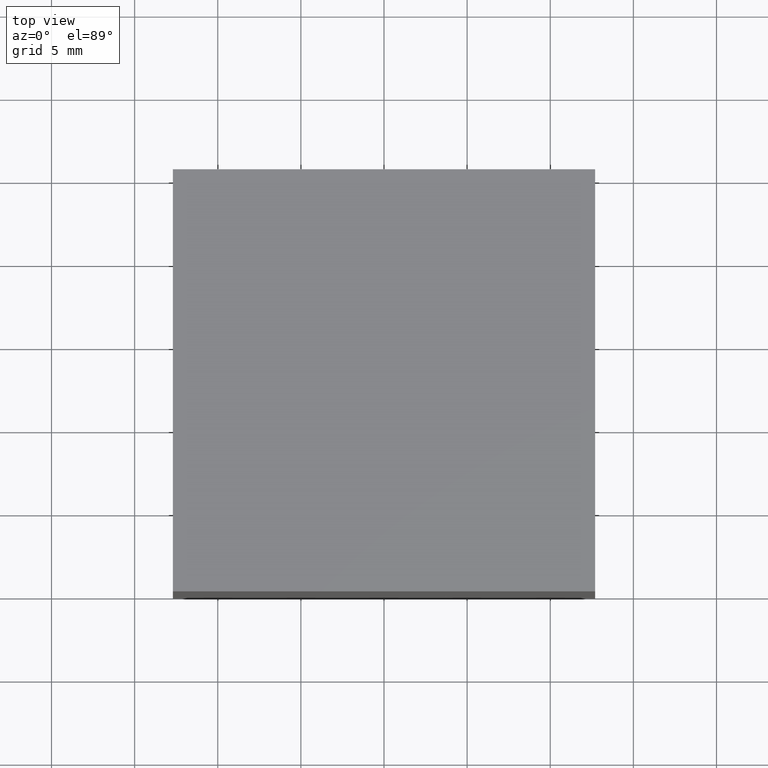
[diagram: clean part render]
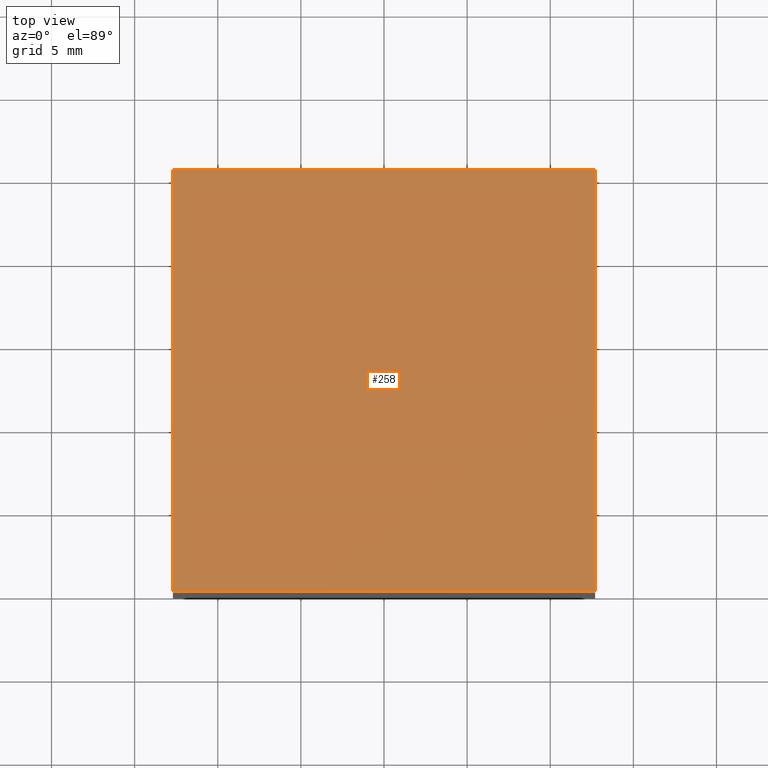
[diagram: same view with one face highlighted and labeled with its STEP entity id]
A machine part, top view. The second image highlights one B-rep face of the part: STEP entity #258.
In plain terms, the highlighted planar face has unit normal (0, 0, 1).
Its self-contained STEP definition (entity closure, byte-faithful):
#6 = CARTESIAN_POINT ( 'NONE',  ( -12.69999999999999929, 0.000000000000000000, 12.69999999999999929 ) ) ;
#8 = VECTOR ( 'NONE', #189, 1000.000000000000000 ) ;
#9 = EDGE_LOOP ( 'NONE', ( #39, #288, #109, #178 ) ) ;
#29 = CARTESIAN_POINT ( 'NONE',  ( -12.69999999999999929, 25.39999999999999858, 12.69999999999999929 ) ) ;
#33 = CARTESIAN_POINT ( 'NONE',  ( -12.69999999999999929, 25.39999999999999858, 12.69999999999999929 ) ) ;
#39 = ORIENTED_EDGE ( 'NONE', *, *, #169, .T. ) ;
#44 = CARTESIAN_POINT ( 'NONE',  ( 12.69999999999999929, 25.39999999999999858, 12.69999999999999929 ) ) ;
#67 = VECTOR ( 'NONE', #173, 1000.000000000000000 ) ;
#73 = VECTOR ( 'NONE', #193, 1000.000000000000000 ) ;
#81 = VERTEX_POINT ( 'NONE', #118 ) ;
#82 = LINE ( 'NONE', #33, #67 ) ;
#94 = CARTESIAN_POINT ( 'NONE',  ( -12.69999999999999929, 0.000000000000000000, 12.69999999999999929 ) ) ;
#99 = PLANE ( 'NONE',  #202 ) ;
#109 = ORIENTED_EDGE ( 'NONE', *, *, #307, .F. ) ;
#111 = VERTEX_POINT ( 'NONE', #44 ) ;
#118 = CARTESIAN_POINT ( 'NONE',  ( 12.69999999999999929, 0.000000000000000000, 12.69999999999999929 ) ) ;
#124 = DIRECTION ( 'NONE',  ( 0.000000000000000000, 0.000000000000000000, 1.000000000000000000 ) ) ;
#141 = EDGE_CURVE ( 'NONE', #81, #111, #166, .T. ) ;
#146 = LINE ( 'NONE', #6, #224 ) ;
#155 = VERTEX_POINT ( 'NONE', #94 ) ;
#166 = LINE ( 'NONE', #299, #8 ) ;
#169 = EDGE_CURVE ( 'NONE', #155, #81, #216, .T. ) ;
#172 = FACE_OUTER_BOUND ( 'NONE', #9, .T. ) ;
#173 = DIRECTION ( 'NONE',  ( 1.000000000000000000, 0.000000000000000000, 0.000000000000000000 ) ) ;
#178 = ORIENTED_EDGE ( 'NONE', *, *, #269, .F. ) ;
#189 = DIRECTION ( 'NONE',  ( 0.000000000000000000, 1.000000000000000000, 0.000000000000000000 ) ) ;
#193 = DIRECTION ( 'NONE',  ( 1.000000000000000000, 0.000000000000000000, 0.000000000000000000 ) ) ;
#202 = AXIS2_PLACEMENT_3D ( 'NONE', #300, #124, #274 ) ;
#216 = LINE ( 'NONE', #242, #73 ) ;
#224 = VECTOR ( 'NONE', #273, 1000.000000000000000 ) ;
#235 = VERTEX_POINT ( 'NONE', #29 ) ;
#242 = CARTESIAN_POINT ( 'NONE',  ( -12.69999999999999929, 0.000000000000000000, 12.69999999999999929 ) ) ;
#258 = ADVANCED_FACE ( 'NONE', ( #172 ), #99, .T. ) ;
#269 = EDGE_CURVE ( 'NONE', #155, #235, #146, .T. ) ;
#273 = DIRECTION ( 'NONE',  ( 0.000000000000000000, 1.000000000000000000, 0.000000000000000000 ) ) ;
#274 = DIRECTION ( 'NONE',  ( 1.000000000000000000, 0.000000000000000000, 0.000000000000000000 ) ) ;
#288 = ORIENTED_EDGE ( 'NONE', *, *, #141, .T. ) ;
#299 = CARTESIAN_POINT ( 'NONE',  ( 12.69999999999999929, 0.000000000000000000, 12.69999999999999929 ) ) ;
#300 = CARTESIAN_POINT ( 'NONE',  ( -12.69999999999999929, 0.000000000000000000, 12.69999999999999929 ) ) ;
#307 = EDGE_CURVE ( 'NONE', #235, #111, #82, .T. ) ;